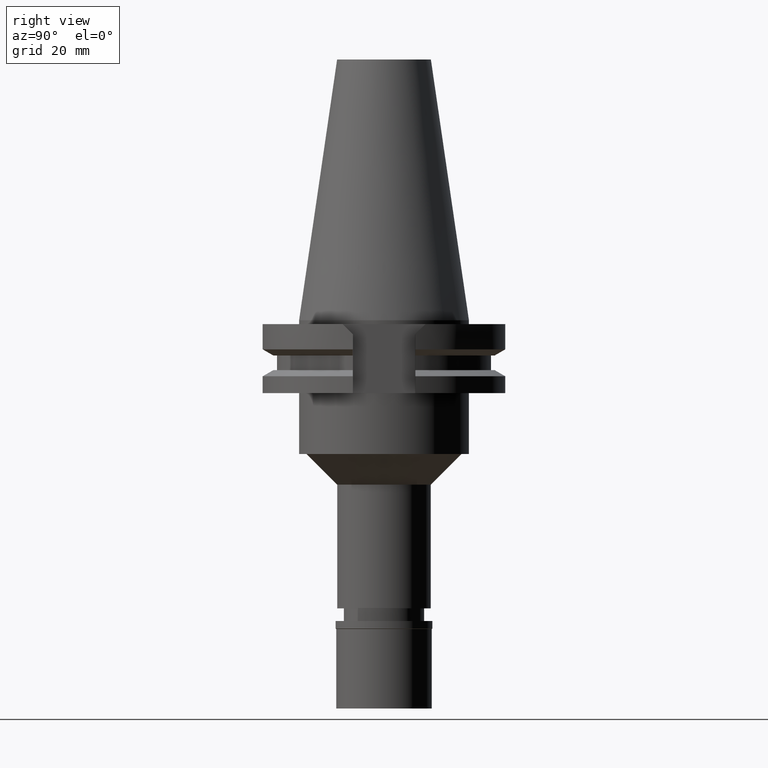
[diagram: clean part render]
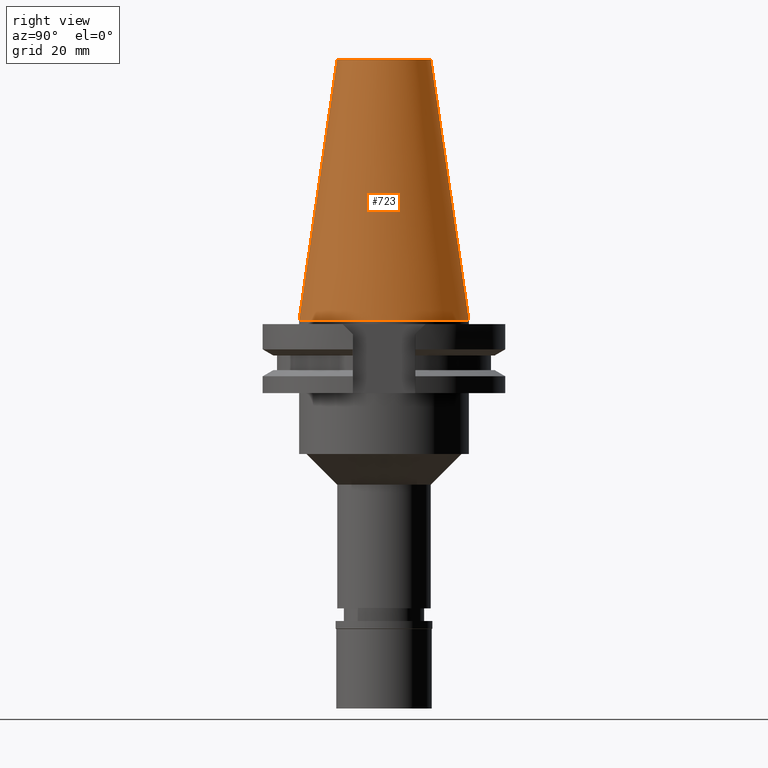
[diagram: same view with one face highlighted and labeled with its STEP entity id]
A machine part, right view. The second image highlights one B-rep face of the part: STEP entity #723.
In plain terms, the highlighted conical surface has half-angle 8.297 deg.
Its self-contained STEP definition (entity closure, byte-faithful):
#52 = LINE ( 'NONE', #441, #95 ) ;
#95 = VECTOR ( 'NONE', #3289, 1000.000000000000114 ) ;
#258 = VERTEX_POINT ( 'NONE', #2356 ) ;
#346 = VERTEX_POINT ( 'NONE', #2416 ) ;
#441 = CARTESIAN_POINT ( 'NONE',  ( 0.0000000000000000000, 12.27186888070000137, 68.25000000000000000 ) ) ;
#507 = VERTEX_POINT ( 'NONE', #3300 ) ;
#570 = AXIS2_PLACEMENT_3D ( 'NONE', #2620, #2829, #2367 ) ;
#695 = EDGE_LOOP ( 'NONE', ( #2739, #857, #2962, #1720 ) ) ;
#723 = ADVANCED_FACE ( 'NONE', ( #768 ), #2183, .T. ) ;
#768 = FACE_OUTER_BOUND ( 'NONE', #695, .T. ) ;
#857 = ORIENTED_EDGE ( 'NONE', *, *, #2574, .T. ) ;
#925 = DIRECTION ( 'NONE',  ( 0.0000000000000000000, 0.0000000000000000000, -1.000000000000000000 ) ) ;
#1161 = CARTESIAN_POINT ( 'NONE',  ( 0.0000000000000000000, 22.22500000000000142, -1.421085471519999938E-13 ) ) ;
#1318 = VECTOR ( 'NONE', #1734, 1000.000000000000114 ) ;
#1579 = AXIS2_PLACEMENT_3D ( 'NONE', #2448, #1997, #2465 ) ;
#1720 = ORIENTED_EDGE ( 'NONE', *, *, #1851, .F. ) ;
#1734 = DIRECTION ( 'NONE',  ( 0.0000000000000000000, -0.1443069799456937474, -0.9895329683941577192 ) ) ;
#1743 = CIRCLE ( 'NONE', #2865, 22.22500000000000142 ) ;
#1851 = EDGE_CURVE ( 'NONE', #258, #2606, #52, .T. ) ;
#1933 = DIRECTION ( 'NONE',  ( 0.0000000000000000000, 1.000000000000000000, 0.0000000000000000000 ) ) ;
#1997 = DIRECTION ( 'NONE',  ( 0.0000000000000000000, 0.0000000000000000000, -1.000000000000000000 ) ) ;
#2183 = CONICAL_SURFACE ( 'NONE', #570, 17.24843444035000317, 0.1448125860318199565 ) ;
#2258 = CARTESIAN_POINT ( 'NONE',  ( 0.0000000000000000000, 0.0000000000000000000, -2.842170943040000381E-13 ) ) ;
#2356 = CARTESIAN_POINT ( 'NONE',  ( 0.0000000000000000000, 12.27186888070000137, 68.25000000000000000 ) ) ;
#2367 = DIRECTION ( 'NONE',  ( 0.0000000000000000000, -1.000000000000000000, 0.0000000000000000000 ) ) ;
#2416 = CARTESIAN_POINT ( 'NONE',  ( 0.0000000000000000000, -22.22500000000000142, -1.421085471519999938E-13 ) ) ;
#2448 = CARTESIAN_POINT ( 'NONE',  ( 0.0000000000000000000, 0.0000000000000000000, 68.25000000000000000 ) ) ;
#2465 = DIRECTION ( 'NONE',  ( 0.0000000000000000000, 1.000000000000000000, 0.0000000000000000000 ) ) ;
#2574 = EDGE_CURVE ( 'NONE', #507, #346, #2990, .T. ) ;
#2588 = CIRCLE ( 'NONE', #1579, 12.27186888070000137 ) ;
#2606 = VERTEX_POINT ( 'NONE', #1161 ) ;
#2620 = CARTESIAN_POINT ( 'NONE',  ( 0.0000000000000000000, 0.0000000000000000000, 34.12500000000000000 ) ) ;
#2719 = CARTESIAN_POINT ( 'NONE',  ( 0.0000000000000000000, -12.27186888070000137, 68.25000000000000000 ) ) ;
#2730 = EDGE_CURVE ( 'NONE', #2606, #346, #1743, .T. ) ;
#2735 = EDGE_CURVE ( 'NONE', #258, #507, #2588, .T. ) ;
#2739 = ORIENTED_EDGE ( 'NONE', *, *, #2735, .T. ) ;
#2829 = DIRECTION ( 'NONE',  ( 0.0000000000000000000, 0.0000000000000000000, -1.000000000000000000 ) ) ;
#2865 = AXIS2_PLACEMENT_3D ( 'NONE', #2258, #925, #1933 ) ;
#2962 = ORIENTED_EDGE ( 'NONE', *, *, #2730, .F. ) ;
#2990 = LINE ( 'NONE', #2719, #1318 ) ;
#3289 = DIRECTION ( 'NONE',  ( 0.0000000000000000000, 0.1443069799456937474, -0.9895329683941577192 ) ) ;
#3300 = CARTESIAN_POINT ( 'NONE',  ( 0.0000000000000000000, -12.27186888070000137, 68.25000000000000000 ) ) ;